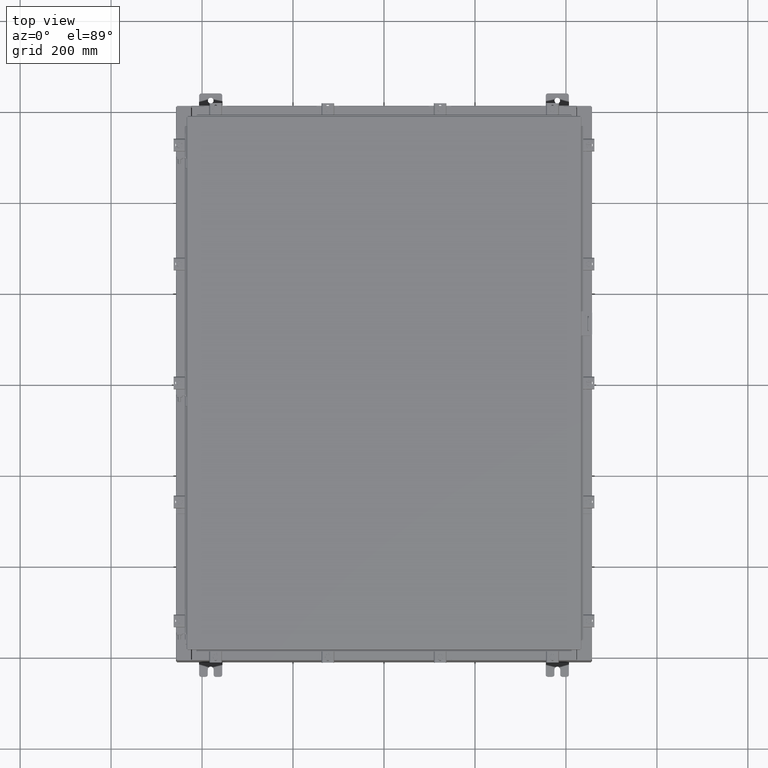
[diagram: clean part render]
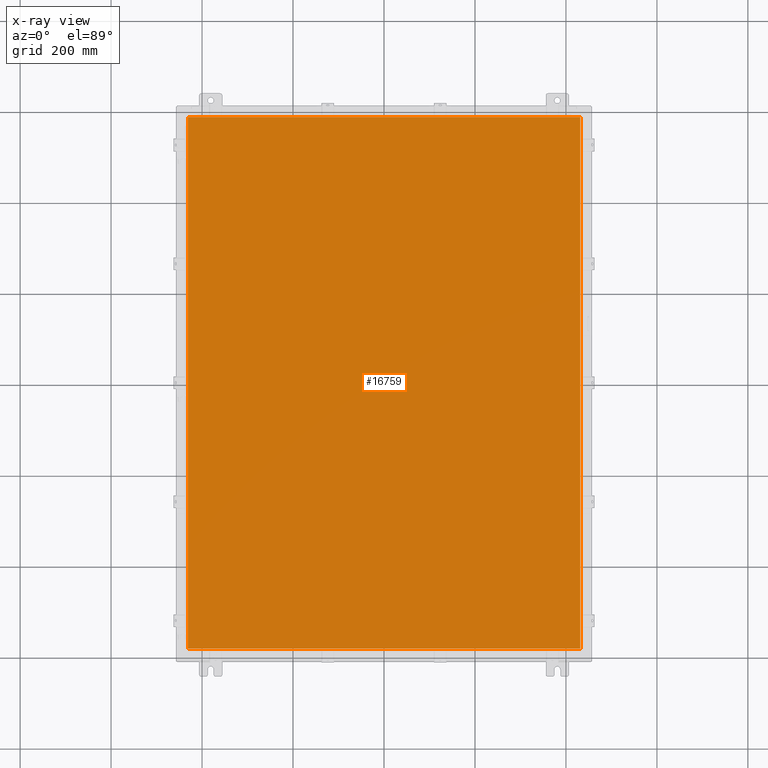
[diagram: x-ray — body ghosted, one internal face saturated and labeled with its STEP entity id]
A machine part, top view, then the same camera in x-ray: the body is ghosted and one INTERNAL B-rep face — a face not visible from any outside direction — is saturated and labeled: STEP entity #16759.
In plain terms, the highlighted planar face has unit normal (0, 0, -1).
Its self-contained STEP definition (entity closure, byte-faithful):
#1142 = EDGE_LOOP ( 'NONE', ( #1992, #21144, #7105, #21969 ) ) ;
#1992 = ORIENTED_EDGE ( 'NONE', *, *, #27272, .F. ) ;
#2024 = DIRECTION ( 'NONE',  ( 0.0000000000000000000, 0.0000000000000000000, -1.000000000000000000 ) ) ;
#2172 = CARTESIAN_POINT ( 'NONE',  ( 16.99030000000000100, 23.00629999999999600, -0.07470000000000000300 ) ) ;
#3335 = VECTOR ( 'NONE', #16077, 39.37007874015748100 ) ;
#6630 = CARTESIAN_POINT ( 'NONE',  ( -16.99029999999999800, -23.00630000000000000, -0.07469999999999797600 ) ) ;
#7105 = ORIENTED_EDGE ( 'NONE', *, *, #14934, .F. ) ;
#7700 = CARTESIAN_POINT ( 'NONE',  ( 16.99030000000000100, -23.00629999999999600, -0.07470000000000129300 ) ) ;
#7775 = DIRECTION ( 'NONE',  ( 0.0000000000000000000, -1.000000000000000000, 0.0000000000000000000 ) ) ;
#8359 = CARTESIAN_POINT ( 'NONE',  ( 0.0000000000000000000, 0.0000000000000000000, -0.07470000000000000300 ) ) ;
#9801 = DIRECTION ( 'NONE',  ( -1.000000000000000000, -0.0000000000000000000, -0.0000000000000000000 ) ) ;
#9999 = AXIS2_PLACEMENT_3D ( 'NONE', #8359, #2024, #16924 ) ;
#11032 = FACE_OUTER_BOUND ( 'NONE', #1142, .T. ) ;
#12657 = PLANE ( 'NONE',  #9999 ) ;
#14934 = EDGE_CURVE ( 'NONE', #18243, #26882, #26436, .T. ) ;
#15445 = CARTESIAN_POINT ( 'NONE',  ( -16.99029999999999800, 23.00629999999999600, -0.07470000000000000300 ) ) ;
#15581 = CARTESIAN_POINT ( 'NONE',  ( 16.99030000000000100, -23.00630000000000000, -0.07470000000000000300 ) ) ;
#16077 = DIRECTION ( 'NONE',  ( 0.0000000000000000000, 1.000000000000000000, 0.0000000000000000000 ) ) ;
#16601 = VECTOR ( 'NONE', #9801, 39.37007874015748100 ) ;
#16759 = ADVANCED_FACE ( 'NONE', ( #11032 ), #12657, .T. ) ;
#16924 = DIRECTION ( 'NONE',  ( -1.000000000000000000, 0.0000000000000000000, -0.0000000000000000000 ) ) ;
#17133 = CARTESIAN_POINT ( 'NONE',  ( -16.99029999999999800, -23.00629999999999600, -0.07470000000000000300 ) ) ;
#17329 = DIRECTION ( 'NONE',  ( 1.000000000000000000, -0.0000000000000000000, -0.0000000000000000000 ) ) ;
#18243 = VERTEX_POINT ( 'NONE', #15445 ) ;
#18505 = VECTOR ( 'NONE', #17329, 39.37007874015748100 ) ;
#19373 = EDGE_CURVE ( 'NONE', #22924, #18243, #21625, .T. ) ;
#19665 = LINE ( 'NONE', #7700, #3335 ) ;
#20549 = CARTESIAN_POINT ( 'NONE',  ( -16.99029999999999800, 23.00629999999999600, -0.07470000000000019700 ) ) ;
#20780 = VECTOR ( 'NONE', #7775, 39.37007874015748100 ) ;
#21144 = ORIENTED_EDGE ( 'NONE', *, *, #23019, .F. ) ;
#21625 = LINE ( 'NONE', #24684, #16601 ) ;
#21969 = ORIENTED_EDGE ( 'NONE', *, *, #19373, .F. ) ;
#22924 = VERTEX_POINT ( 'NONE', #2172 ) ;
#23019 = EDGE_CURVE ( 'NONE', #26882, #25718, #25511, .T. ) ;
#24684 = CARTESIAN_POINT ( 'NONE',  ( 16.99029999999999800, 23.00630000000000000, -0.07469999999999804600 ) ) ;
#25511 = LINE ( 'NONE', #6630, #18505 ) ;
#25718 = VERTEX_POINT ( 'NONE', #15581 ) ;
#26436 = LINE ( 'NONE', #20549, #20780 ) ;
#26882 = VERTEX_POINT ( 'NONE', #17133 ) ;
#27272 = EDGE_CURVE ( 'NONE', #25718, #22924, #19665, .T. ) ;